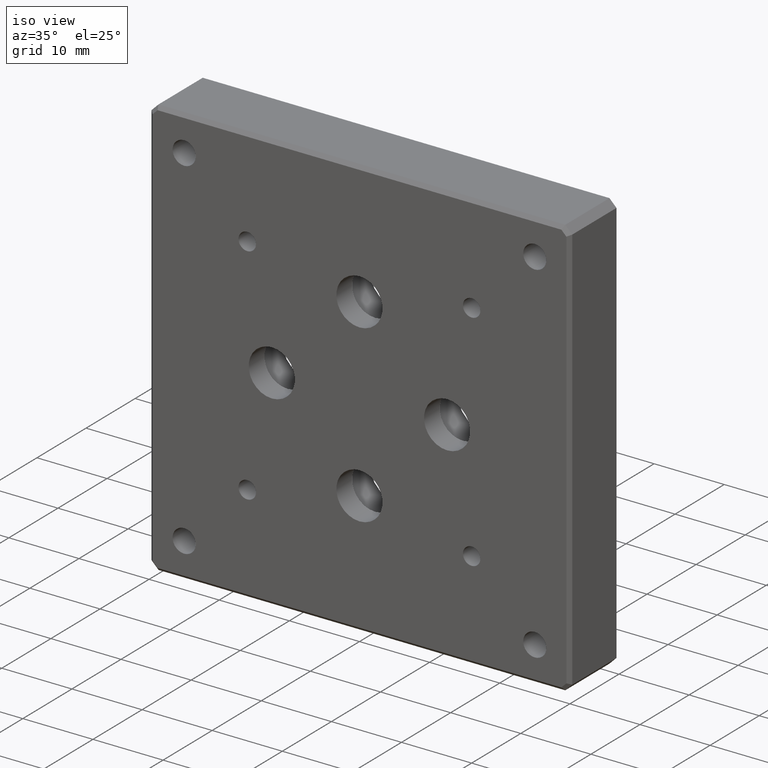
[diagram: clean part render]
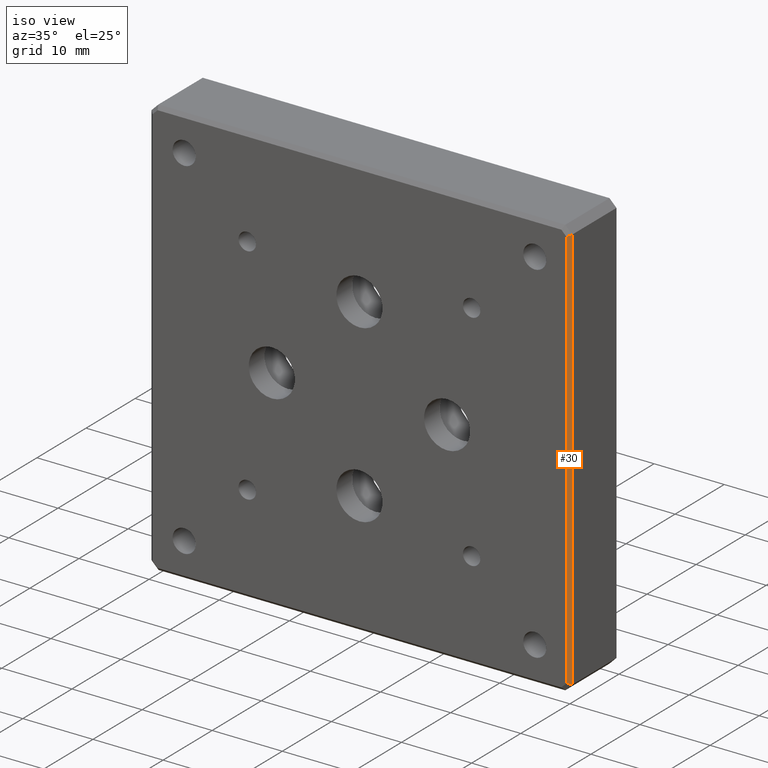
[diagram: same view with one face highlighted and labeled with its STEP entity id]
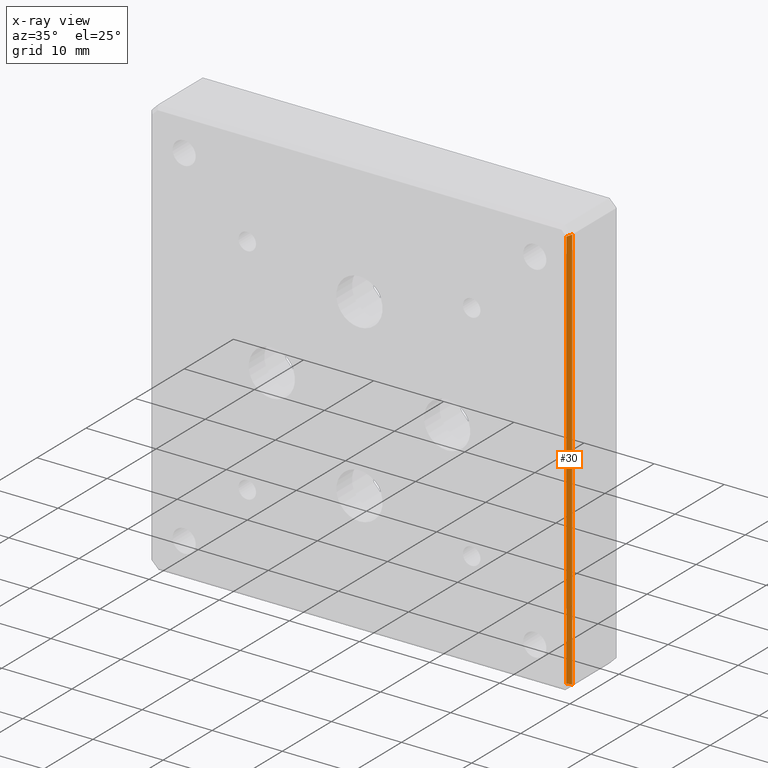
[diagram: x-ray of the same camera — body ghosted, the highlighted face saturated]
A machine part, iso view. The second image highlights one B-rep face of the part: STEP entity #30.
The next image is the same camera in x-ray: the body ghosted, the highlighted face saturated — about 0% of this face is hidden behind the body in this view.
In plain terms, the highlighted planar face has unit normal (-0.7071, 0.7071, 0).
Its self-contained STEP definition (entity closure, byte-faithful):
#30 = ADVANCED_FACE ( 'NONE', ( #904 ), #42, .F. ) ;
#42 = PLANE ( 'NONE',  #508 ) ;
#43 = CARTESIAN_POINT ( 'NONE',  ( 29.99999999999999645, 0.5000000000000213163, -29.00000000000000711 ) ) ;
#84 = EDGE_CURVE ( 'NONE', #799, #919, #646, .T. ) ;
#93 = CARTESIAN_POINT ( 'NONE',  ( 29.49999999999998934, 0.000000000000000000, -28.79289321881344321 ) ) ;
#118 = EDGE_LOOP ( 'NONE', ( #816, #1029, #1339, #1231 ) ) ;
#131 = LINE ( 'NONE', #826, #876 ) ;
#152 = LINE ( 'NONE', #605, #1288 ) ;
#211 = VERTEX_POINT ( 'NONE', #690 ) ;
#286 = CARTESIAN_POINT ( 'NONE',  ( 29.99999999999999645, 0.5000000000000073275, -29.99999999999999645 ) ) ;
#343 = DIRECTION ( 'NONE',  ( 0.6785983445458466656, 0.6785983445458466656, 0.2810846377148217834 ) ) ;
#364 = VERTEX_POINT ( 'NONE', #93 ) ;
#375 = EDGE_CURVE ( 'NONE', #211, #799, #152, .T. ) ;
#376 = CARTESIAN_POINT ( 'NONE',  ( 30.00000000000000355, 0.5000000000000004441, 29.00000000000000000 ) ) ;
#380 = VECTOR ( 'NONE', #692, 1000.000000000000227 ) ;
#410 = DIRECTION ( 'NONE',  ( -0.7071067811865475727, 0.7071067811865475727, 8.177564888977996636E-17 ) ) ;
#508 = AXIS2_PLACEMENT_3D ( 'NONE', #671, #410, #1389 ) ;
#605 = CARTESIAN_POINT ( 'NONE',  ( 29.40462821508469560, -0.09537178491529885171, 28.75338893203381119 ) ) ;
#646 = LINE ( 'NONE', #286, #801 ) ;
#671 = CARTESIAN_POINT ( 'NONE',  ( 29.99999999999999645, 0.5000000000000073275, -29.99999999999999645 ) ) ;
#690 = CARTESIAN_POINT ( 'NONE',  ( 29.49999999999999645, 0.000000000000000000, 28.79289321881346453 ) ) ;
#692 = DIRECTION ( 'NONE',  ( -0.6785983445458482199, -0.6785983445458482199, 0.2810846377148143449 ) ) ;
#799 = VERTEX_POINT ( 'NONE', #376 ) ;
#801 = VECTOR ( 'NONE', #1263, 1000.000000000000000 ) ;
#816 = ORIENTED_EDGE ( 'NONE', *, *, #375, .F. ) ;
#826 = CARTESIAN_POINT ( 'NONE',  ( 29.49999999999999289, 0.000000000000000000, -3.411622836087719962E-15 ) ) ;
#876 = VECTOR ( 'NONE', #1450, 1000.000000000000000 ) ;
#904 = FACE_OUTER_BOUND ( 'NONE', #118, .T. ) ;
#919 = VERTEX_POINT ( 'NONE', #43 ) ;
#1029 = ORIENTED_EDGE ( 'NONE', *, *, #1301, .F. ) ;
#1102 = EDGE_CURVE ( 'NONE', #919, #364, #1542, .T. ) ;
#1231 = ORIENTED_EDGE ( 'NONE', *, *, #84, .F. ) ;
#1263 = DIRECTION ( 'NONE',  ( -1.156482317317871478E-16, 0.000000000000000000, -1.000000000000000000 ) ) ;
#1288 = VECTOR ( 'NONE', #343, 1000.000000000000114 ) ;
#1301 = EDGE_CURVE ( 'NONE', #364, #211, #131, .T. ) ;
#1339 = ORIENTED_EDGE ( 'NONE', *, *, #1102, .F. ) ;
#1389 = DIRECTION ( 'NONE',  ( -1.156482317317871478E-16, 0.000000000000000000, -1.000000000000000000 ) ) ;
#1450 = DIRECTION ( 'NONE',  ( 1.156482317317871478E-16, 0.000000000000000000, 1.000000000000000000 ) ) ;
#1523 = CARTESIAN_POINT ( 'NONE',  ( 29.40462821508471336, -0.09537178491527464885, -28.75338893203380763 ) ) ;
#1542 = LINE ( 'NONE', #1523, #380 ) ;